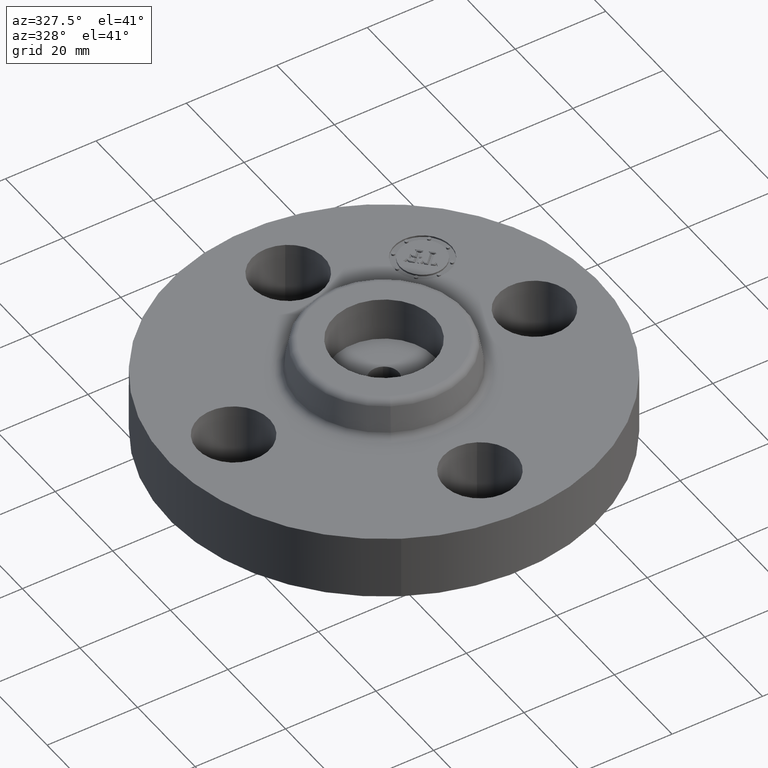
[diagram: clean part render]
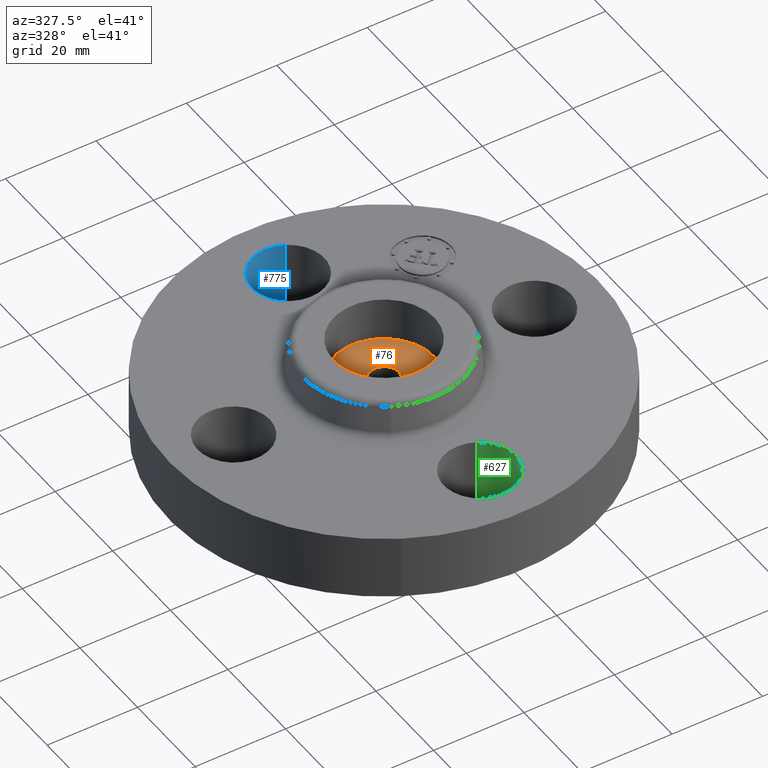
[diagram: same view with three faces highlighted in distinct colors, each labeled with its STEP entity id]
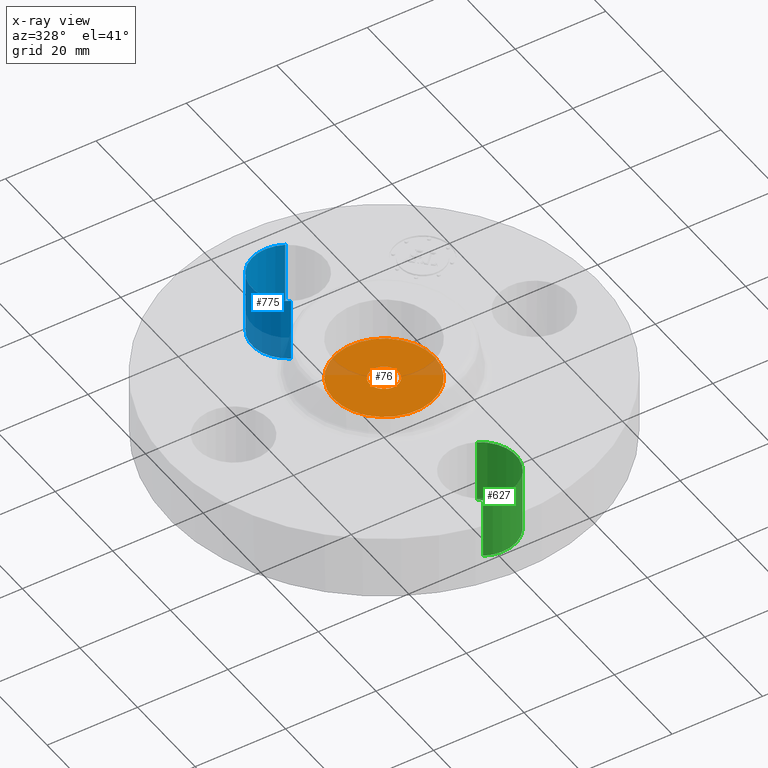
[diagram: x-ray of the same camera — body ghosted, the three highlighted faces saturated]
A machine part, auxiliary view with three faces highlighted in distinct colors.
The next image is the same camera in x-ray (body ghosted, the three faces saturated) — at least one of them is partly hidden behind the body in this view.
Their STEP definitions:

[orange] entity #76 — the highlighted planar face has unit normal (0, 0, -1).
#38=AXIS2_PLACEMENT_3D('Plane Axis2P3D',#35,#36,#37) ;
#42=AXIS2_PLACEMENT_3D('Circle Axis2P3D',#40,#41,$) ;
#51=AXIS2_PLACEMENT_3D('Circle Axis2P3D',#49,#50,$) ;
#60=AXIS2_PLACEMENT_3D('Circle Axis2P3D',#58,#59,$) ;
#69=AXIS2_PLACEMENT_3D('Circle Axis2P3D',#67,#68,$) ;
#35=CARTESIAN_POINT('Axis2P3D Location',(0.,-6.99353086378E-017,0.500000000002)) ;
#40=CARTESIAN_POINT('Axis2P3D Location',(1.74838271595E-017,-1.04902962957E-016,0.500000000002)) ;
#44=CARTESIAN_POINT('Vertex',(-0.386136327247,0.210947237,0.500000000002)) ;
#46=CARTESIAN_POINT('Vertex',(0.386136327247,-0.210947237,0.500000000002)) ;
#49=CARTESIAN_POINT('Axis2P3D Location',(-1.74838271595E-017,-3.49676543189E-017,0.500000000002)) ;
#58=CARTESIAN_POINT('Axis2P3D Location',(-3.49676543189E-017,-8.30481790074E-017,0.500000000002)) ;
#62=CARTESIAN_POINT('Vertex',(0.0604076178994,0.11057540283,0.500000000002)) ;
#64=CARTESIAN_POINT('Vertex',(-0.0604076178994,-0.11057540283,0.500000000002)) ;
#67=CARTESIAN_POINT('Axis2P3D Location',(3.49676543189E-017,-5.68224382682E-017,0.500000000002)) ;
#36=DIRECTION('Axis2P3D Direction',(0.,0.,-0.0393700787402)) ;
#37=DIRECTION('Axis2P3D XDirection',(0.0393700787402,0.,0.)) ;
#41=DIRECTION('Axis2P3D Direction',(0.,0.,-0.0393700787402)) ;
#50=DIRECTION('Axis2P3D Direction',(0.,0.,-0.0393700787402)) ;
#59=DIRECTION('Axis2P3D Direction',(0.,0.,-0.0393700787402)) ;
#68=DIRECTION('Axis2P3D Direction',(0.,0.,-0.0393700787402)) ;
#55=ORIENTED_EDGE('',*,*,#48,.F.) ;
#56=ORIENTED_EDGE('',*,*,#53,.F.) ;
#73=ORIENTED_EDGE('',*,*,#66,.T.) ;
#74=ORIENTED_EDGE('',*,*,#71,.T.) ;
#75=FACE_BOUND('',#72,.T.) ;
#76=ADVANCED_FACE('PartBody',(#57,#75),#39,.F.) ;
#43=CIRCLE('generated circle',#42,0.44000000002) ;
#52=CIRCLE('generated circle',#51,0.44000000002) ;
#61=CIRCLE('generated circle',#60,0.126000000045) ;
#70=CIRCLE('generated circle',#69,0.126000000045) ;
#48=EDGE_CURVE('',#45,#47,#43,.T.) ;
#53=EDGE_CURVE('',#47,#45,#52,.T.) ;
#66=EDGE_CURVE('',#63,#65,#61,.T.) ;
#71=EDGE_CURVE('',#65,#63,#70,.T.) ;
#54=EDGE_LOOP('',(#55,#56)) ;
#72=EDGE_LOOP('',(#73,#74)) ;
#57=FACE_OUTER_BOUND('',#54,.T.) ;
#39=PLANE('',#38) ;
#45=VERTEX_POINT('',#44) ;
#47=VERTEX_POINT('',#46) ;
#63=VERTEX_POINT('',#62) ;
#65=VERTEX_POINT('',#64) ;

[blue] entity #775 — the highlighted cylindrical surface (partial cylindrical patch) has radius 8.001 mm, axis along (-0, 0, -1).
#351=AXIS2_PLACEMENT_3D('Circle Axis2P3D',#349,#350,$) ;
#736=AXIS2_PLACEMENT_3D('Cylinder Axis2P3D',#733,#734,#735) ;
#349=CARTESIAN_POINT('Axis2P3D Location',(4.36654037512E-011,1.31,0.)) ;
#353=CARTESIAN_POINT('Vertex',(-0.151019044675,1.03356149303,0.)) ;
#355=CARTESIAN_POINT('Vertex',(0.151019044675,1.58643850703,0.)) ;
#733=CARTESIAN_POINT('Axis2P3D Location',(-2.40643096033E-016,1.31000000001,0.556062992128)) ;
#738=CARTESIAN_POINT('Line Origine',(-0.151019044661,1.03356149301,0.280000000001)) ;
#742=CARTESIAN_POINT('Vertex',(-0.151019044659,1.03356149301,0.559999999987)) ;
#745=CARTESIAN_POINT('Line Origine',(0.151019044661,1.58643850701,0.280000000001)) ;
#749=CARTESIAN_POINT('Vertex',(0.151019044661,1.58643850701,0.559999999987)) ;
#753=CARTESIAN_POINT('Control Point',(-0.151019044659,1.03356149301,0.559999999987)) ;
#754=CARTESIAN_POINT('Control Point',(-0.194441903797,1.05728350908,0.559999999988)) ;
#755=CARTESIAN_POINT('Control Point',(-0.233206955973,1.08953158359,0.559999999989)) ;
#756=CARTESIAN_POINT('Control Point',(-0.265074533341,1.12909312141,0.55999999999)) ;
#757=CARTESIAN_POINT('Control Point',(-0.311580534084,1.21857978084,0.559999999991)) ;
#758=CARTESIAN_POINT('Control Point',(-0.320796932275,1.31900750771,0.559999999992)) ;
#759=CARTESIAN_POINT('Control Point',(-0.315356480668,1.36951551943,0.559999999993)) ;
#760=CARTESIAN_POINT('Control Point',(-0.284964565451,1.46567685163,0.559999999995)) ;
#761=CARTESIAN_POINT('Control Point',(-0.220468416417,1.54320695598,0.559999999996)) ;
#762=CARTESIAN_POINT('Control Point',(-0.180906878602,1.57507453335,0.559999999997)) ;
#763=CARTESIAN_POINT('Control Point',(-0.0914202191719,1.62158053409,0.559999999998)) ;
#764=CARTESIAN_POINT('Control Point',(0.0090075077032,1.63079693228,0.56)) ;
#765=CARTESIAN_POINT('Control Point',(0.0595155194239,1.62535648068,0.560000000001)) ;
#766=CARTESIAN_POINT('Control Point',(0.107596185523,1.61016052307,0.560000000001)) ;
#767=CARTESIAN_POINT('Control Point',(0.151019044661,1.58643850701,0.560000000002)) ;
#350=DIRECTION('Axis2P3D Direction',(0.,0.,-0.0393700787402)) ;
#734=DIRECTION('Axis2P3D Direction',(-0.,0.,-0.0393700787402)) ;
#735=DIRECTION('Axis2P3D XDirection',(-0.0188750212047,-0.0345504945627,0.)) ;
#739=DIRECTION('Vector Direction',(0.,0.,-0.0393700787402)) ;
#746=DIRECTION('Vector Direction',(0.,0.,-0.0393700787402)) ;
#740=VECTOR('Line Direction',#739,0.0393700787402) ;
#747=VECTOR('Line Direction',#746,0.0393700787402) ;
#770=ORIENTED_EDGE('',*,*,#744,.F.) ;
#771=ORIENTED_EDGE('',*,*,#357,.T.) ;
#772=ORIENTED_EDGE('',*,*,#751,.T.) ;
#773=ORIENTED_EDGE('',*,*,#768,.F.) ;
#775=ADVANCED_FACE('PartBody',(#774),#737,.F.) ;
#752=B_SPLINE_CURVE_WITH_KNOTS('',5,(#753,#754,#755,#756,#757,#758,#759,#760,#761,#762,#763,#764,#765,#766,#767),.UNSPECIFIED.,.F.,.U.,(6,3,3,3,6),(-12.5679414107,-6.28397070537,0.,6.28397070537,12.5679414107),.UNSPECIFIED.) ;
#352=CIRCLE('generated circle',#351,0.315000000013) ;
#737=CYLINDRICAL_SURFACE('generated cylinder',#736,0.315000000001) ;
#357=EDGE_CURVE('',#354,#356,#352,.T.) ;
#744=EDGE_CURVE('',#354,#743,#741,.F.) ;
#751=EDGE_CURVE('',#356,#750,#748,.F.) ;
#768=EDGE_CURVE('',#743,#750,#752,.T.) ;
#769=EDGE_LOOP('',(#770,#771,#772,#773)) ;
#774=FACE_OUTER_BOUND('',#769,.T.) ;
#741=LINE('Line',#738,#740) ;
#748=LINE('Line',#745,#747) ;
#354=VERTEX_POINT('',#353) ;
#356=VERTEX_POINT('',#355) ;
#743=VERTEX_POINT('',#742) ;
#750=VERTEX_POINT('',#749) ;

[green] entity #627 — the highlighted cylindrical surface (partial cylindrical patch) has radius 8.001 mm, axis along (0, 0, -1).
#315=AXIS2_PLACEMENT_3D('Circle Axis2P3D',#313,#314,$) ;
#588=AXIS2_PLACEMENT_3D('Cylinder Axis2P3D',#585,#586,#587) ;
#313=CARTESIAN_POINT('Axis2P3D Location',(-1.28118338336E-011,-1.30999999998,0.)) ;
#317=CARTESIAN_POINT('Vertex',(0.151019044675,-1.03356149299,0.)) ;
#319=CARTESIAN_POINT('Vertex',(-0.151019044675,-1.58643850699,0.)) ;
#585=CARTESIAN_POINT('Axis2P3D Location',(-1.99526869207E-016,-1.31000000001,0.556062992128)) ;
#590=CARTESIAN_POINT('Line Origine',(0.151019044661,-1.03356149301,0.280000000001)) ;
#594=CARTESIAN_POINT('Vertex',(0.151019044659,-1.03356149301,0.559999999987)) ;
#597=CARTESIAN_POINT('Line Origine',(-0.151019044661,-1.58643850701,0.280000000001)) ;
#601=CARTESIAN_POINT('Vertex',(-0.151019044661,-1.58643850701,0.559999999987)) ;
#605=CARTESIAN_POINT('Control Point',(0.151019044659,-1.03356149301,0.559999999987)) ;
#606=CARTESIAN_POINT('Control Point',(0.194441903797,-1.05728350908,0.559999999988)) ;
#607=CARTESIAN_POINT('Control Point',(0.233206955973,-1.08953158359,0.559999999989)) ;
#608=CARTESIAN_POINT('Control Point',(0.265074533341,-1.12909312141,0.55999999999)) ;
#609=CARTESIAN_POINT('Control Point',(0.311580534084,-1.21857978084,0.559999999991)) ;
#610=CARTESIAN_POINT('Control Point',(0.320796932275,-1.31900750771,0.559999999992)) ;
#611=CARTESIAN_POINT('Control Point',(0.315356480668,-1.36951551943,0.559999999993)) ;
#612=CARTESIAN_POINT('Control Point',(0.284964565451,-1.46567685163,0.559999999995)) ;
#613=CARTESIAN_POINT('Control Point',(0.220468416417,-1.54320695598,0.559999999996)) ;
#614=CARTESIAN_POINT('Control Point',(0.180906878602,-1.57507453335,0.559999999997)) ;
#615=CARTESIAN_POINT('Control Point',(0.0914202191719,-1.62158053409,0.559999999998)) ;
#616=CARTESIAN_POINT('Control Point',(-0.0090075077032,-1.63079693228,0.56)) ;
#617=CARTESIAN_POINT('Control Point',(-0.0595155194239,-1.62535648068,0.560000000001)) ;
#618=CARTESIAN_POINT('Control Point',(-0.107596185523,-1.61016052307,0.560000000001)) ;
#619=CARTESIAN_POINT('Control Point',(-0.151019044661,-1.58643850701,0.560000000002)) ;
#314=DIRECTION('Axis2P3D Direction',(0.,0.,-0.0393700787402)) ;
#586=DIRECTION('Axis2P3D Direction',(0.,0.,-0.0393700787402)) ;
#587=DIRECTION('Axis2P3D XDirection',(0.0188750212047,0.0345504945627,0.)) ;
#591=DIRECTION('Vector Direction',(0.,0.,-0.0393700787402)) ;
#598=DIRECTION('Vector Direction',(0.,0.,-0.0393700787402)) ;
#592=VECTOR('Line Direction',#591,0.0393700787402) ;
#599=VECTOR('Line Direction',#598,0.0393700787402) ;
#622=ORIENTED_EDGE('',*,*,#596,.F.) ;
#623=ORIENTED_EDGE('',*,*,#321,.T.) ;
#624=ORIENTED_EDGE('',*,*,#603,.T.) ;
#625=ORIENTED_EDGE('',*,*,#620,.F.) ;
#627=ADVANCED_FACE('PartBody',(#626),#589,.F.) ;
#604=B_SPLINE_CURVE_WITH_KNOTS('',5,(#605,#606,#607,#608,#609,#610,#611,#612,#613,#614,#615,#616,#617,#618,#619),.UNSPECIFIED.,.F.,.U.,(6,3,3,3,6),(-12.5679414107,-6.28397070537,0.,6.28397070537,12.5679414107),.UNSPECIFIED.) ;
#316=CIRCLE('generated circle',#315,0.315000000013) ;
#589=CYLINDRICAL_SURFACE('generated cylinder',#588,0.315000000001) ;
#321=EDGE_CURVE('',#318,#320,#316,.T.) ;
#596=EDGE_CURVE('',#318,#595,#593,.F.) ;
#603=EDGE_CURVE('',#320,#602,#600,.F.) ;
#620=EDGE_CURVE('',#595,#602,#604,.T.) ;
#621=EDGE_LOOP('',(#622,#623,#624,#625)) ;
#626=FACE_OUTER_BOUND('',#621,.T.) ;
#593=LINE('Line',#590,#592) ;
#600=LINE('Line',#597,#599) ;
#318=VERTEX_POINT('',#317) ;
#320=VERTEX_POINT('',#319) ;
#595=VERTEX_POINT('',#594) ;
#602=VERTEX_POINT('',#601) ;